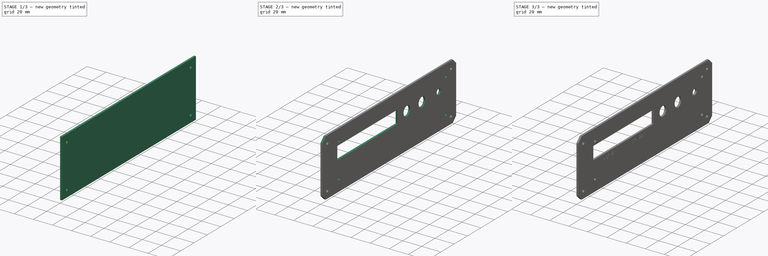
[diagram: build sequence overview — one tinted view per stage of 3, left to right]
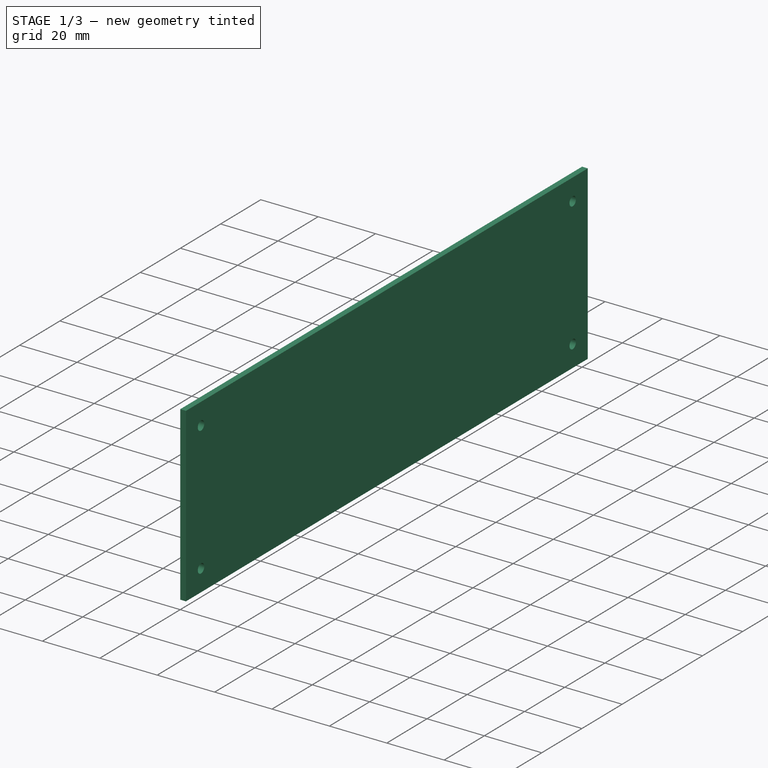
[diagram: stage 1 of 3 — iso view after this stage's code; geometry added in this stage tinted green]
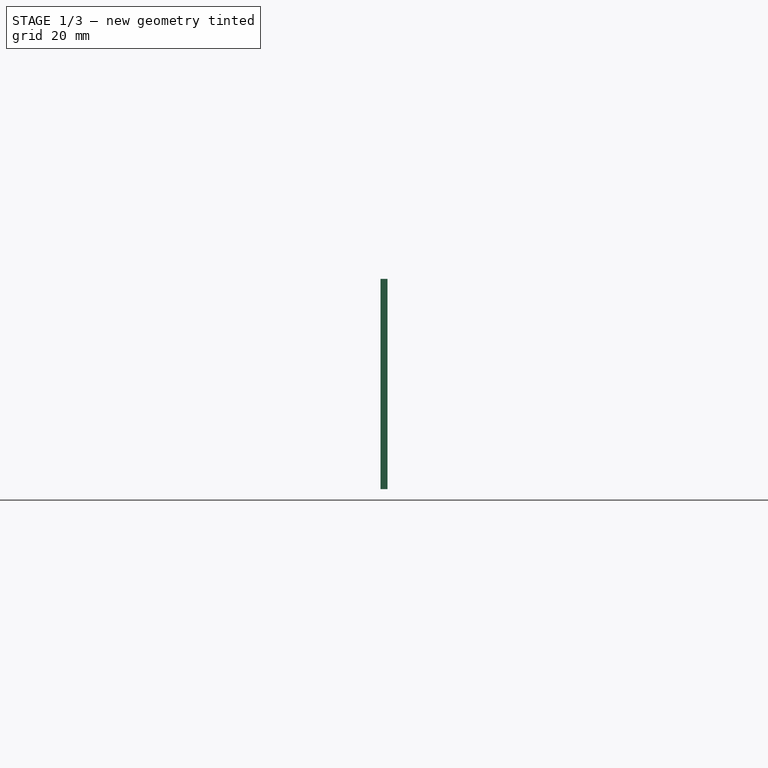
[diagram: stage 1 of 3 — front view after this stage's code; geometry added in this stage tinted green]
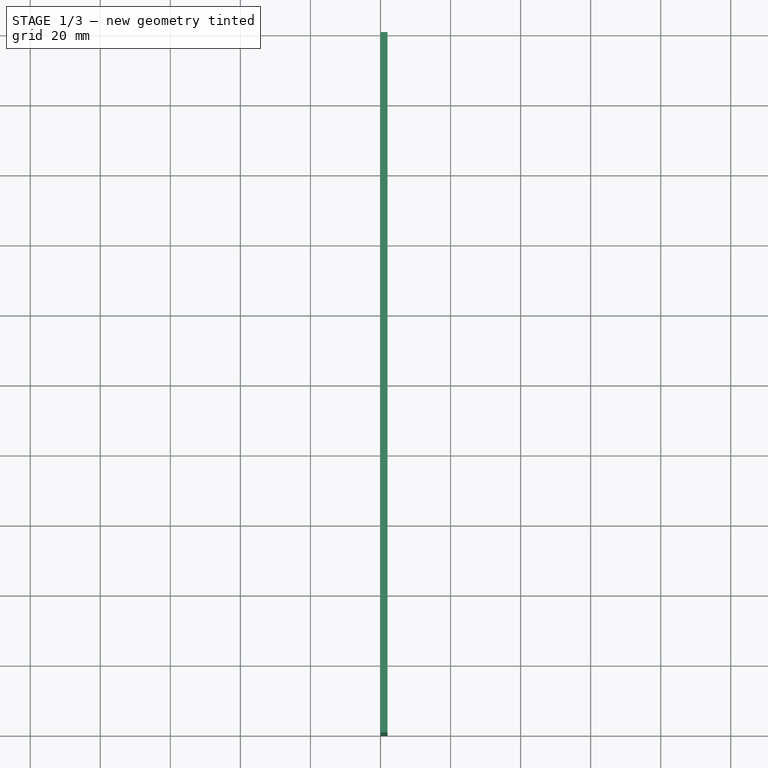
[diagram: stage 1 of 3 — top view after this stage's code; geometry added in this stage tinted green]
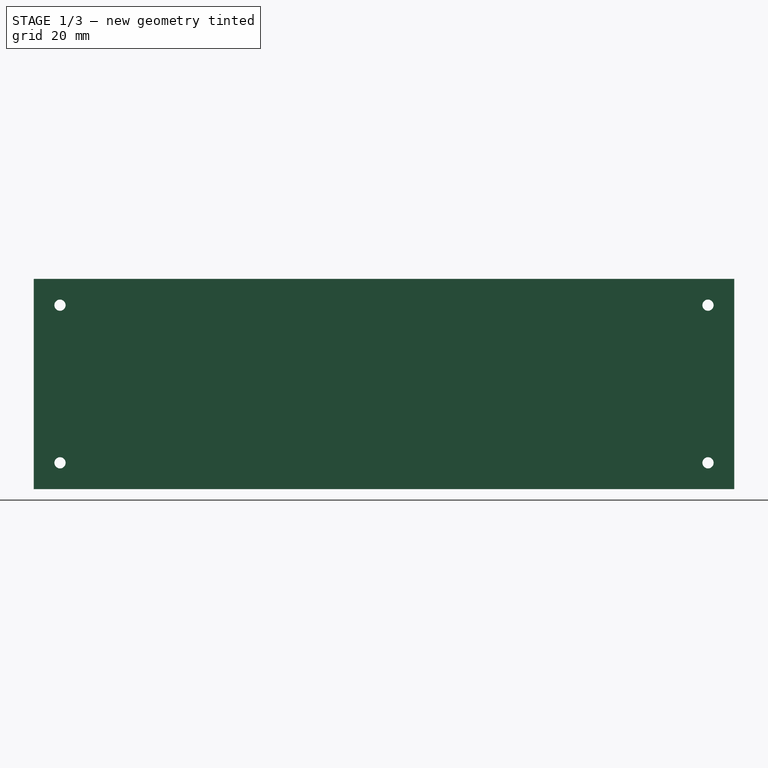
[diagram: stage 1 of 3 — right view after this stage's code; geometry added in this stage tinted green]
FCSTD DOCUMENT  (FreeCAD 1.0R39109 (Git))
Label: radio-front
License: All rights reserved
LicenseURL: https://en.wikipedia.org/wiki/All_rights_reserved
objects: Sketcher::SketchObject×5, PartDesign::Pocket×4, PartDesign::Pad×2, Part::Part2DObjectPython×2, PartDesign::Chamfer×1, PartDesign::Body×1
note: 34 computed .brp shape members not serialized (recipe doc carries the construction recipe); baked Part::Feature solids carry a one-line shape summary decoded from their .brp

FEATURE [Sketcher::SketchObject] Sketch
  ArcFitTolerance = 1e-06
  AttachmentSupport = -> [YZ_Plane]
  FullyConstrained = true
  MakeInternals = false
  MapMode = 5
  Placement = pos=(0,0,0) rot=(0.57735,0.57735,0.57735;2.0944rad)
  sketch-geometry (4):
    g0: LineSegment StartX=0 StartY=0 StartZ=0 EndX=200 EndY=0 EndZ=0
    g1: LineSegment StartX=200 StartY=0 StartZ=0 EndX=200 EndY=60 EndZ=0
    g2: LineSegment StartX=200 StartY=60 StartZ=0 EndX=0 EndY=60 EndZ=0
    g3: LineSegment StartX=0 StartY=60 StartZ=0 EndX=0 EndY=0 EndZ=0
  constraints (11):
    c: Coincident(g0,g1)
    c: Coincident(g1,g2)
    c: Coincident(g2,g3)
    c: Coincident(g3,g0)
    c: Horizontal(g0)
    c: Horizontal(g2)
    c: Vertical(g1)
    c: Vertical(g3)
    c: Coincident(g0,g-1)
    c: Distance(g2,g2) = 200
    c: DistanceY(g1,g1) = 60
FEATURE [PartDesign::Pad] Pad
  Direction = (1,0,0)
  Length = 2
  Length2 = 10
  Placement = pos=(0,0,0) rot=(1,1,1;2.0944rad)
  Profile = -> Sketch
  ReferenceAxis = -> Sketch [N_Axis]
  Refine = true
  Suppressed = false
  Type = 0
FEATURE [Sketcher::SketchObject] Sketch002
  ArcFitTolerance = 1e-06
  FullyConstrained = true
  MakeInternals = false
  MapMode = 5
  Placement = pos=(2,0,2e-16) rot=(0.57735,0.57735,0.57735;2.0944rad)
  sketch-geometry (8):
    g0: LineSegment [constr] StartX=7.5 StartY=52.5 StartZ=0 EndX=7.5 EndY=7.5 EndZ=0
    g1: LineSegment [constr] StartX=7.5 StartY=7.5 StartZ=0 EndX=192.5 EndY=7.5 EndZ=0
    g2: LineSegment [constr] StartX=192.5 StartY=7.5 StartZ=0 EndX=192.5 EndY=52.5 EndZ=0
    g3: LineSegment [constr] StartX=192.5 StartY=52.5 StartZ=0 EndX=7.5 EndY=52.5 EndZ=0
    g4: Circle CenterX=7.5 CenterY=52.5 CenterZ=0 NormalX=0 NormalY=0 NormalZ=1 AngleXU=0 Radius=1.6
    g5: Circle CenterX=7.5 CenterY=7.5 CenterZ=0 NormalX=0 NormalY=0 NormalZ=1 AngleXU=0 Radius=1.6
    g6: Circle CenterX=192.5 CenterY=7.5 CenterZ=0 NormalX=0 NormalY=0 NormalZ=1 AngleXU=0 Radius=1.6
    g7: Circle CenterX=192.5 CenterY=52.5 CenterZ=0 NormalX=0 NormalY=0 NormalZ=1 AngleXU=0 Radius=1.6
  constraints (20):
    c: Coincident(g0,g1)
    c: Coincident(g1,g2)
    c: Coincident(g2,g3)
    c: Coincident(g3,g0)
    c: Vertical(g0)
    c: Vertical(g2)
    c: Horizontal(g1)
    c: Horizontal(g3)
    c: Distance(g-2,g0) = 7.5
    c: Distance(g-1,g1) = 7.5
    c: Coincident(g4,g0)
    c: Coincident(g5,g0)
    c: Coincident(g6,g1)
    c: Coincident(g7,g2)
    c: Equal(g7,g4)
    c: Equal(g4,g5)
    c: Equal(g5,g6)
    c: Diameter(g4) = 3.2
    c: DistanceY(g0,g0) = 45
    c: DistanceX(g3,g3) = 185
FEATURE [PartDesign::Pocket] Pocket001
  BaseFeature = -> Pad
  Direction = (-1,-1e-16,1e-16)
  Length = 5
  Length2 = 5
  Placement = pos=(0,0,0) rot=(1,1,1;2.0944rad)
  Profile = -> Sketch002
  ReferenceAxis = -> Sketch002 [N_Axis]
  Refine = true
  Suppressed = false
  Type = 0
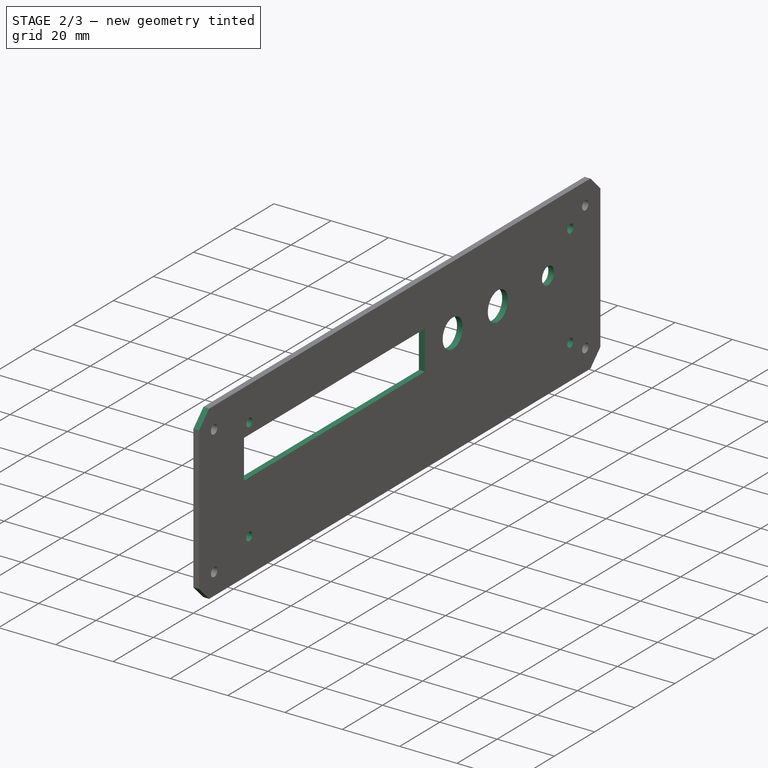
[diagram: stage 2 of 3 — iso view after this stage's code; geometry added in this stage tinted green]
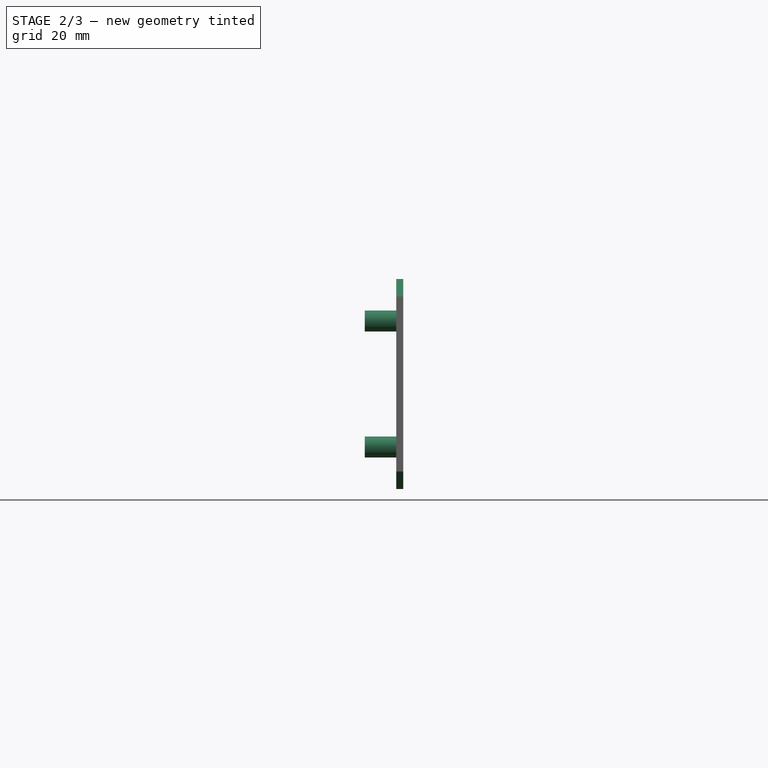
[diagram: stage 2 of 3 — front view after this stage's code; geometry added in this stage tinted green]
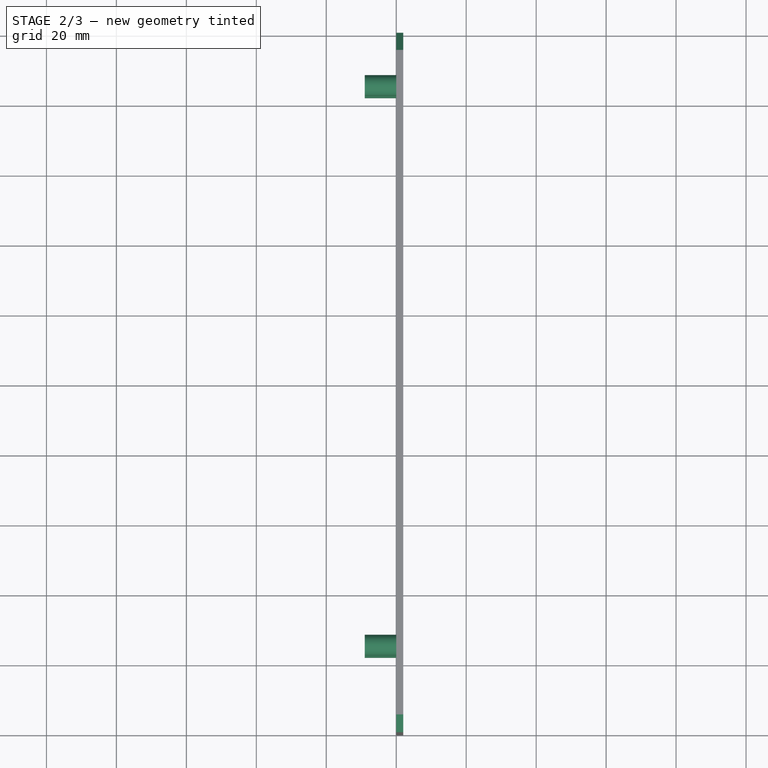
[diagram: stage 2 of 3 — top view after this stage's code; geometry added in this stage tinted green]
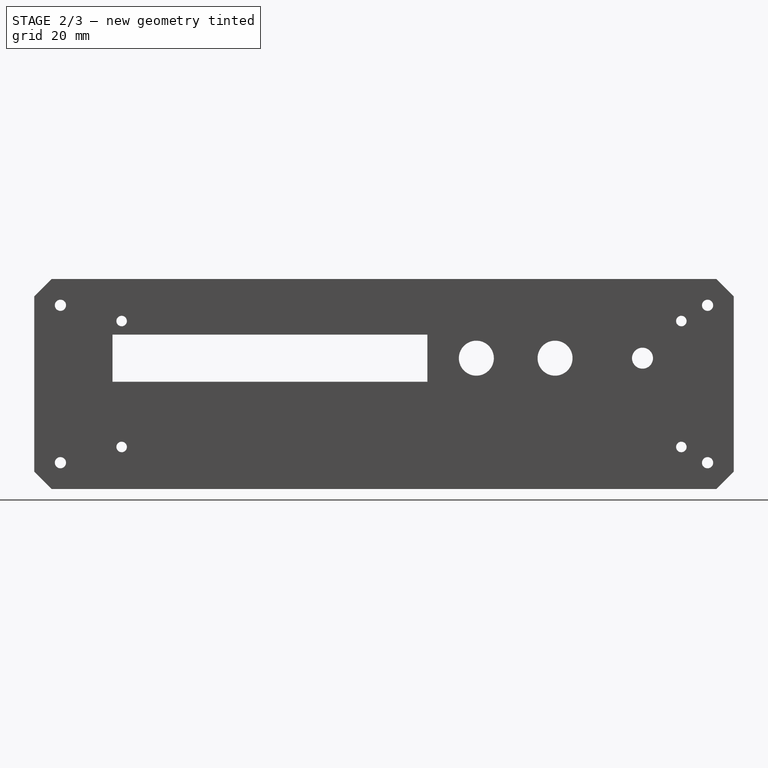
[diagram: stage 2 of 3 — right view after this stage's code; geometry added in this stage tinted green]
FEATURE [Sketcher::SketchObject] Sketch001
  ArcFitTolerance = 1e-06
  AttachmentSupport = -> [Pad]
  ExternalGeometry = -> [Pad,Pocket001]
  FullyConstrained = true
  MakeInternals = false
  MapMode = 5
  Placement = pos=(2,0,0) rot=(0.57735,0.57735,0.57735;2.0944rad)
  sketch-geometry (19):
    g0: Circle CenterX=173.9 CenterY=37.38 CenterZ=0 NormalX=0 NormalY=0 NormalZ=1 AngleXU=0 Radius=3
    g1: Circle CenterX=148.9 CenterY=37.38 CenterZ=0 NormalX=0 NormalY=0 NormalZ=1 AngleXU=0 Radius=5
    g2: Circle CenterX=126.4 CenterY=37.38 CenterZ=0 NormalX=0 NormalY=0 NormalZ=1 AngleXU=0 Radius=5
    g3: LineSegment [constr] StartX=25 StartY=48 StartZ=0 EndX=25 EndY=12 EndZ=0
    g4: LineSegment [constr] StartX=25 StartY=12 StartZ=0 EndX=185 EndY=12 EndZ=0
    g5: LineSegment [constr] StartX=185 StartY=48 StartZ=0 EndX=25 EndY=48 EndZ=0
    g6: LineSegment [constr] StartX=185 StartY=12 StartZ=0 EndX=185 EndY=30 EndZ=0
    g7: LineSegment [constr] StartX=185 StartY=30 StartZ=0 EndX=185 EndY=48 EndZ=0
    g8: LineSegment [constr] StartX=25 StartY=48 StartZ=0 EndX=0 EndY=48 EndZ=0
    g9: LineSegment StartX=22.4 StartY=44.13 StartZ=0 EndX=22.4 EndY=30.63 EndZ=0
    g10: LineSegment StartX=22.4 StartY=30.63 StartZ=0 EndX=112.4 EndY=30.63 EndZ=0
    g11: LineSegment StartX=112.4 StartY=44.13 StartZ=0 EndX=22.4 EndY=44.13 EndZ=0
    g12: LineSegment StartX=112.4 StartY=44.13 StartZ=0 EndX=112.4 EndY=37.38 EndZ=0
    g13: LineSegment StartX=112.4 StartY=37.38 StartZ=0 EndX=112.4 EndY=30.63 EndZ=0
    g14: Circle CenterX=25 CenterY=48 CenterZ=0 NormalX=0 NormalY=0 NormalZ=1 AngleXU=0 Radius=1.5
    g15: Circle CenterX=25 CenterY=12 CenterZ=0 NormalX=0 NormalY=0 NormalZ=1 AngleXU=0 Radius=1.5
    g16: Circle CenterX=185 CenterY=12 CenterZ=0 NormalX=0 NormalY=0 NormalZ=1 AngleXU=0 Radius=1.5
    g17: Circle CenterX=185 CenterY=48 CenterZ=0 NormalX=0 NormalY=0 NormalZ=1 AngleXU=0 Radius=1.5
    g18: LineSegment [constr] StartX=25 StartY=37.38 StartZ=0 EndX=185 EndY=37.38 EndZ=0
  constraints (54):
    c: DistanceX(g1,g0) = 25
    c: DistanceX(g2,g1) = 22.5
    c: Equal(g2,g1)
    c: Diameter(g2) = 10
    c: Diameter(g0) = 6
    c: Coincident(g3,g4)
    c: Coincident(g5,g3)
    c: Vertical(g3)
    c: Horizontal(g4)
    c: Horizontal(g5)
    c: Coincident(g6,g4)
    c: Vertical(g6)
    c: Coincident(g7,g6)
    c: Coincident(g7,g5)
    c: Vertical(g7)
    c: Equal(g7,g6)
    c: DistanceY(g3,g3) = 36
    c: Coincident(g8,g3)
    c: PointOnObject(g8,g-4)
    c: Horizontal(g8)
    c: Distance(g0,g7) = 11.1
    c: Coincident(g9,g10)
    c: Coincident(g11,g9)
    c: Vertical(g9)
    c: Horizontal(g10)
    c: Horizontal(g11)
    c: Coincident(g12,g11)
    c: Vertical(g12)
    c: Coincident(g13,g12)
    c: Coincident(g13,g10)
    c: Vertical(g13)
    c: Equal(g12,g13)
    c: DistanceX(g11,g11) = 90
    c: Distance(g2,g12) = 14
    c: DistanceX(g4,g4) = 160
    c: Distance(g9,g9) = 13.5
    c: Coincident(g14,g3)
    c: Coincident(g15,g3)
    c: Coincident(g16,g4)
    c: Coincident(g17,g5)
    c: Equal(g17,g16)
    c: Equal(g16,g15)
    c: Equal(g15,g14)
    c: Diameter(g14) = 3
    c: PointOnObject(g18,g3)
    c: PointOnObject(g18,g7)
    c: Horizontal(g18)
    c: PointOnObject(g12,g18)
    c: PointOnObject(g2,g18)
    c: PointOnObject(g1,g18)
    c: PointOnObject(g0,g18)
    c: Distance(g18,g5) = 10.62
    c: DistanceX(g5,g-6) = 7.5
    c: Distance(g-6,g5) = 4.5
FEATURE [PartDesign::Pocket] Pocket
  BaseFeature = -> Pocket001
  Direction = (-1,0,0)
  Length = 5
  Length2 = 5
  Placement = pos=(0,0,0) rot=(1,1,1;2.0944rad)
  Profile = -> Sketch001
  ReferenceAxis = -> Sketch001 [N_Axis]
  Refine = true
  Suppressed = false
  Type = 1
FEATURE [PartDesign::Chamfer] Chamfer
  Angle = 45
  Base = -> Pocket [Edge1,Edge5,Edge8,Edge2]
  BaseFeature = -> Pocket
  ChamferType = 0
  FlipDirection = false
  Placement = pos=(0,0,0) rot=(1,1,1;2.0944rad)
  Refine = true
  Size = 5
  Size2 = 1
  SupportTransform = false
  Suppressed = false
  UseAllEdges = false
FEATURE [Sketcher::SketchObject] Sketch003
  ArcFitTolerance = 1e-06
  AttachmentSupport = -> [Chamfer]
  ExternalGeometry = -> [Chamfer]
  FullyConstrained = true
  MakeInternals = false
  MapMode = 5
  Placement = pos=(0,0,0) rot=(0.57735,0.57735,-0.57735;4.18879rad)
  sketch-geometry (8):
    g0: Circle CenterX=25 CenterY=-12 CenterZ=0 NormalX=0 NormalY=0 NormalZ=1 AngleXU=0 Radius=1.5
    g1: Circle CenterX=25 CenterY=-12 CenterZ=0 NormalX=0 NormalY=0 NormalZ=1 AngleXU=0 Radius=3
    g2: Circle CenterX=25 CenterY=-48 CenterZ=0 NormalX=0 NormalY=0 NormalZ=1 AngleXU=0 Radius=1.5
    g3: Circle CenterX=25 CenterY=-48 CenterZ=0 NormalX=0 NormalY=0 NormalZ=1 AngleXU=0 Radius=3
    g4: Circle CenterX=185 CenterY=-48 CenterZ=0 NormalX=0 NormalY=0 NormalZ=1 AngleXU=0 Radius=3
    g5: Circle CenterX=185 CenterY=-48 CenterZ=0 NormalX=0 NormalY=0 NormalZ=1 AngleXU=0 Radius=1.50001
    g6: Circle CenterX=185 CenterY=-12 CenterZ=0 NormalX=0 NormalY=0 NormalZ=1 AngleXU=0 Radius=1.5
    g7: Circle CenterX=185 CenterY=-12 CenterZ=0 NormalX=0 NormalY=0 NormalZ=1 AngleXU=0 Radius=3
  constraints (16):
    c: Coincident(g0,g-3)
    c: Equal(g0,g-3)
    c: Coincident(g1,g0)
    c: Coincident(g2,g-4)
    c: Equal(g2,g-4)
    c: Coincident(g3,g2)
    c: Coincident(g4,g-5)
    c: Coincident(g5,g4)
    c: Coincident(g6,g-6)
    c: Equal(g6,g-6)
    c: Coincident(g7,g6)
    c: Equal(g1,g3)
    c: Equal(g3,g4)
    c: Equal(g4,g7)
    c: Diameter(g1) = 6
    c: Tangent(g-5,g5)
FEATURE [PartDesign::Pad] Pad001
  BaseFeature = -> Chamfer
  Direction = (-1,0,0)
  Length = 9
  Length2 = 10
  Placement = pos=(0,0,0) rot=(1,1,1;2.0944rad)
  Profile = -> Sketch003
  ReferenceAxis = -> Sketch003 [N_Axis]
  Refine = true
  Suppressed = false
  Type = 0
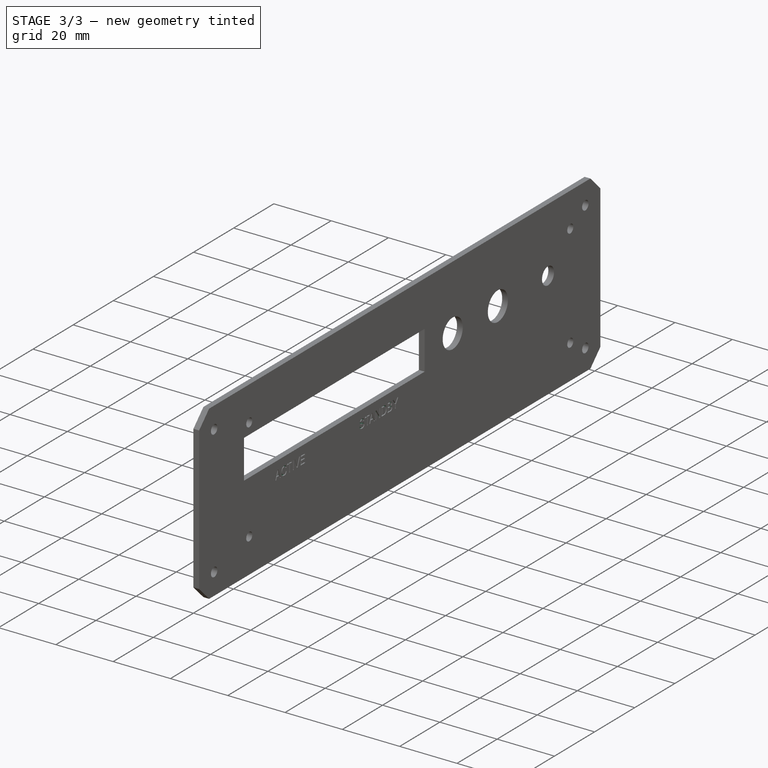
[diagram: stage 3 of 3 — iso view after this stage's code; geometry added in this stage tinted green]
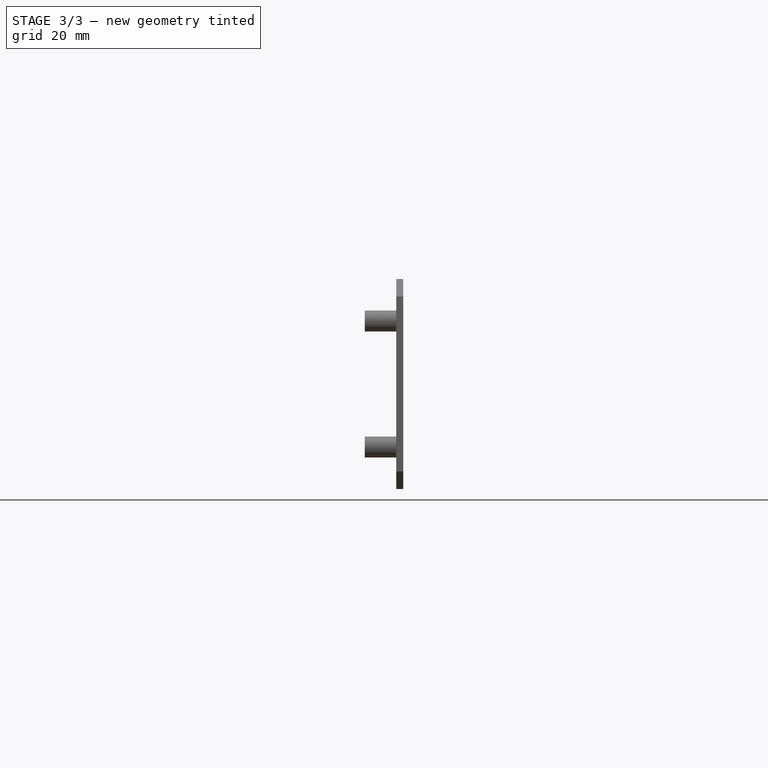
[diagram: stage 3 of 3 — front view after this stage's code; geometry added in this stage tinted green]
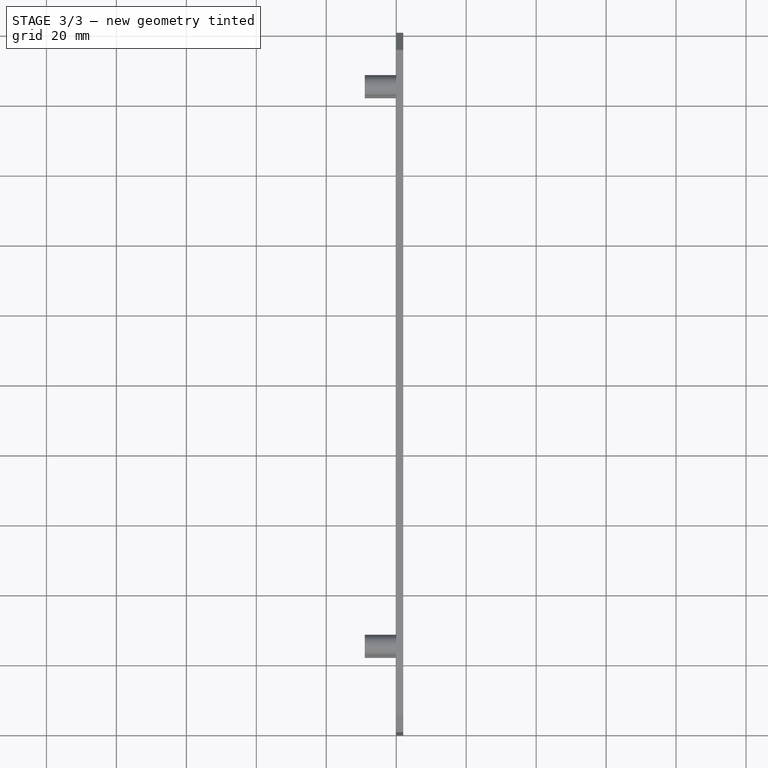
[diagram: stage 3 of 3 — top view after this stage's code; geometry added in this stage tinted green]
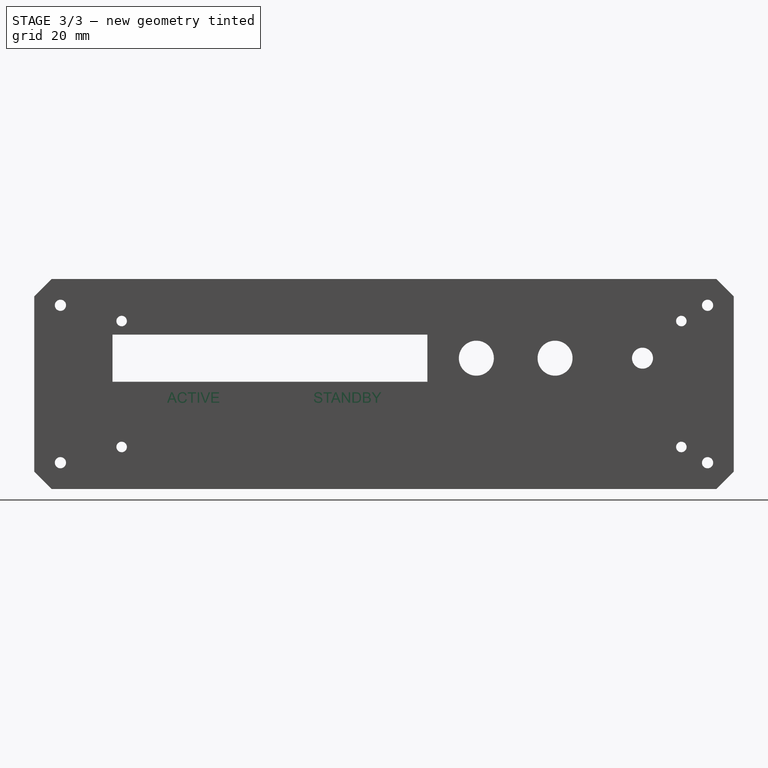
[diagram: stage 3 of 3 — right view after this stage's code; geometry added in this stage tinted green]
FEATURE [Sketcher::SketchObject] Sketch004
  ArcFitTolerance = 1e-06
  AttachmentSupport = -> [Pad001]
  ExternalGeometry = -> [Sketch001]
  FullyConstrained = true
  MakeInternals = false
  MapMode = 5
  Placement = pos=(2,0,0) rot=(0.57735,0.57735,0.57735;2.0944rad)
  sketch-geometry (2):
    g0: LineSegment StartX=44.9 StartY=24.63 StartZ=0 EndX=44.9 EndY=19.63 EndZ=0
    g1: LineSegment StartX=89.9 StartY=24.63 StartZ=0 EndX=89.9 EndY=19.63 EndZ=0
  constraints (8):
    c: Vertical(g0)
    c: Vertical(g1)
    c: Distance(g-4,g0) = 22.5
    c: DistanceY(g0,g-4) = 6
    c: DistanceY(g1,g-3) = 6
    c: DistanceX(g1,g-3) = 22.5
    c: Equal(g0,g1)
    c: DistanceY(g0,g0) = 5
FEATURE [Part::Part2DObjectPython] ShapeString  label="ACTIVE"  # Draft 2D object (typed FeaturePython)
  FontFile = <path>
  Fuse = false
  Justification = 6
  JustificationReference = 0
  KeepLeftMargin = false
  MakeFace = true
  ObliqueAngle = 0
  Placement = pos=(2,37.9917,24.63) rot=(0.57735,0.57735,0.57735;2.0944rad)
  ScaleToSize = true
  Size = 3
  String = ACTIVE
  Tracking = 0
FEATURE [Part::Part2DObjectPython] ShapeString001  label="STANDBY"  # Draft 2D object (typed FeaturePython)
  FontFile = <path>
  Fuse = false
  Justification = 6
  JustificationReference = 0
  KeepLeftMargin = false
  MakeFace = true
  ObliqueAngle = 0
  Placement = pos=(2,79.9925,24.63) rot=(0.57735,0.57735,0.57735;2.0944rad)
  ScaleToSize = true
  Size = 3
  String = STANDBY
  Tracking = 0
FEATURE [PartDesign::Pocket] Pocket002
  BaseFeature = -> Pad001
  Direction = (-1,0,0)
  Length = 0.5
  Length2 = 5
  Placement = pos=(0,0,0) rot=(1,1,1;2.0944rad)
  Profile = -> ShapeString
  ReferenceAxis = -> ShapeString [N_Axis]
  Refine = true
  Suppressed = false
  Type = 0
FEATURE [PartDesign::Pocket] Pocket003
  BaseFeature = -> Pocket002
  Direction = (-1,0,0)
  Length = 0.5
  Length2 = 5
  Placement = pos=(0,0,0) rot=(1,1,1;2.0944rad)
  Profile = -> ShapeString001
  ReferenceAxis = -> ShapeString001 [N_Axis]
  Refine = true
  Suppressed = false
  Type = 0
FEATURE [PartDesign::Body] Body
  AllowCompound = false
  Group = -> [Sketch,Pad,Sketch001,Sketch002,Pocket001,Pocket,Chamfer,Sketch003,Pad001,Sketch004,ShapeString,ShapeString001,Pocket002,Pocket003]
  Origin = -> Origin
  Placement = pos=(0,1.06722,0) rot=(0,0,1;0rad)
  Tip = -> Pocket003
note: 2 file-system paths scrubbed to <path> (originals preserved in the JSON sidecar)
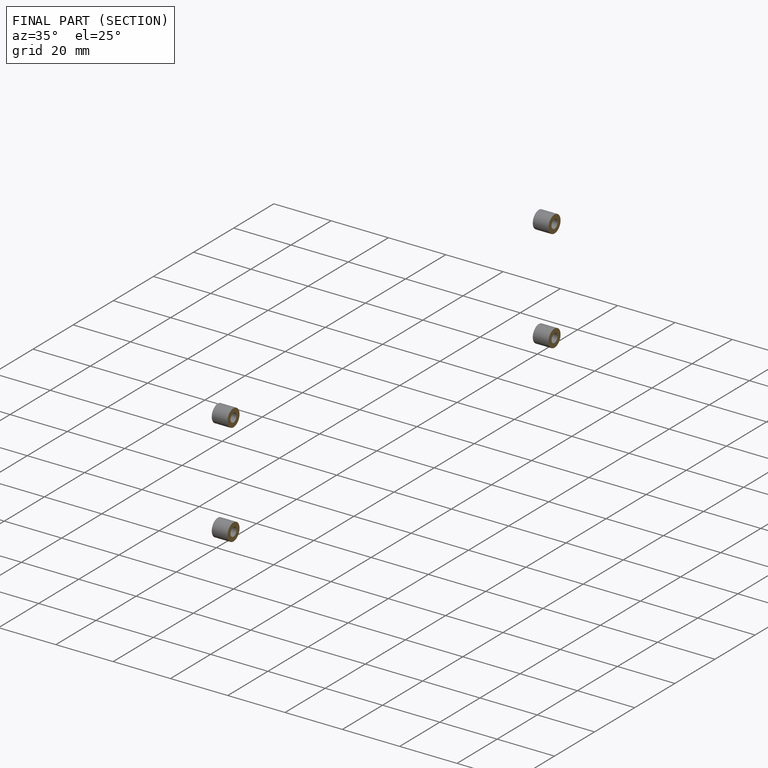
[diagram: finished part — half-section view (interior)]
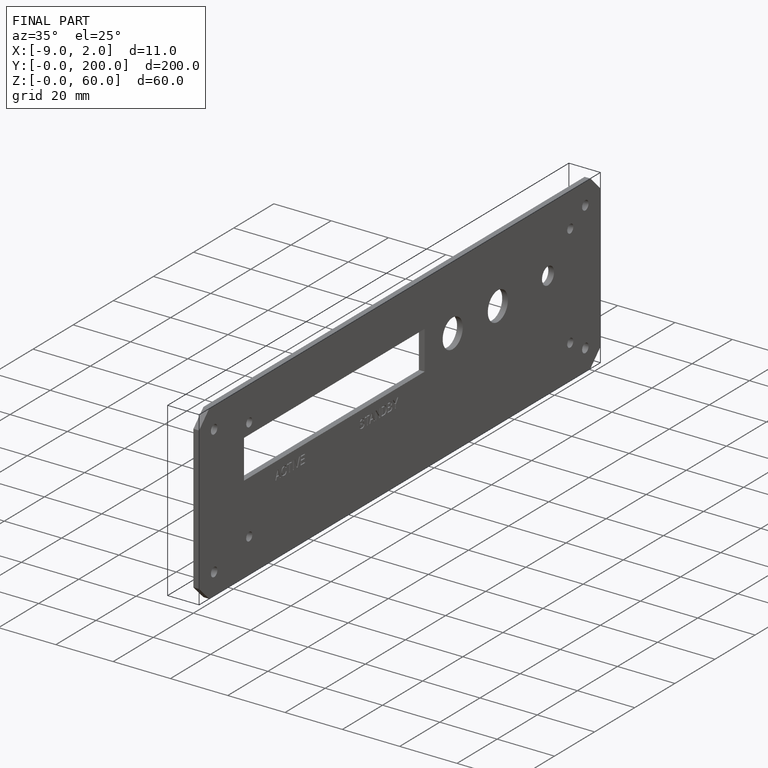
[diagram: finished part — iso view with bounding-box wireframe]
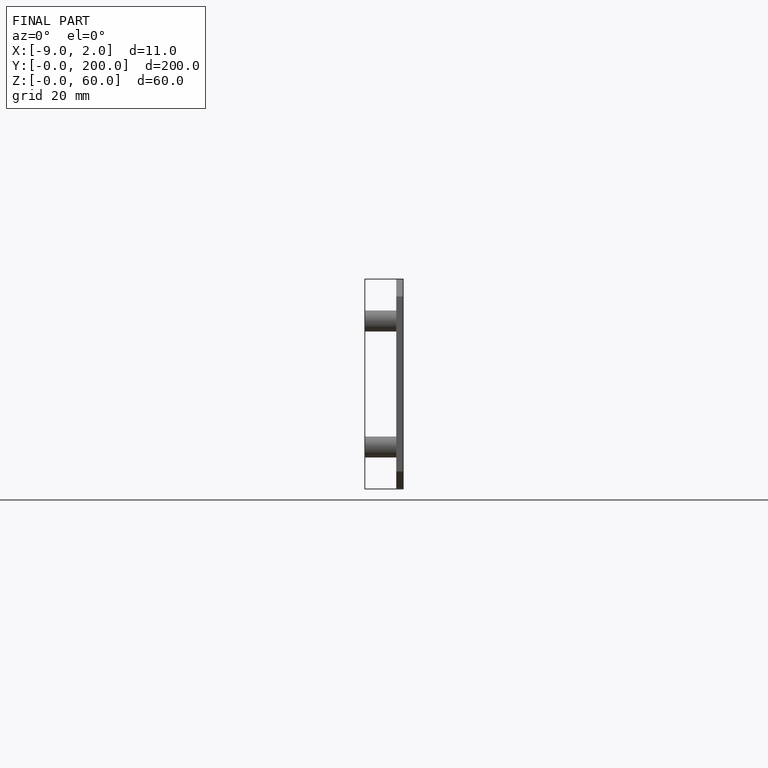
[diagram: finished part — front view with bounding-box wireframe]
